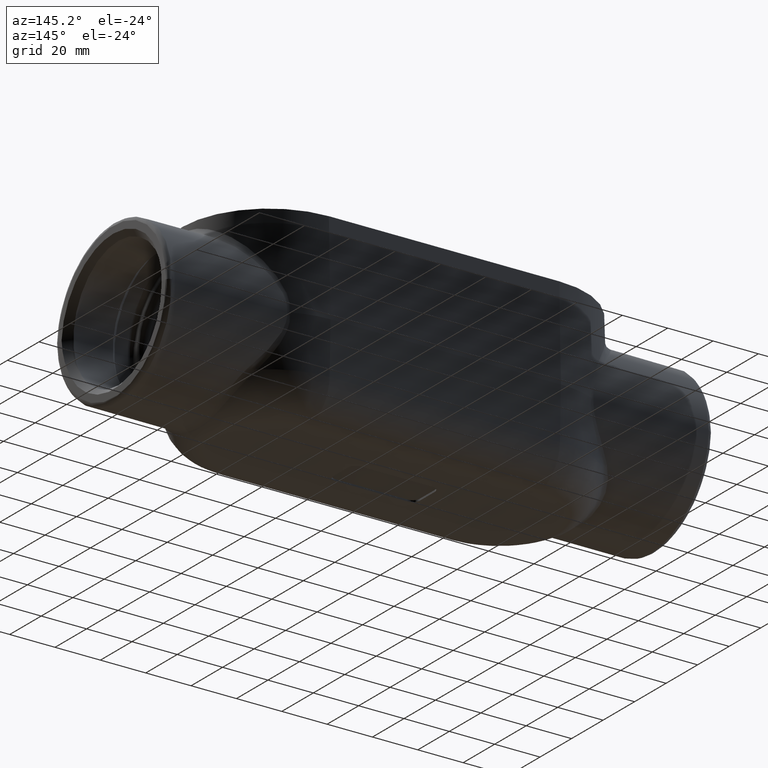
[diagram: clean part render]
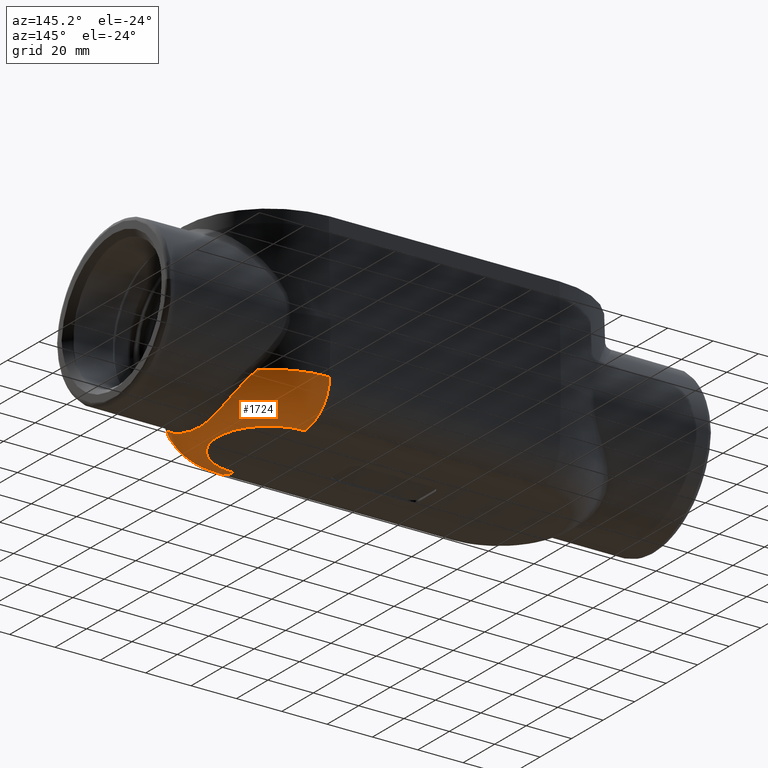
[diagram: same view with one face highlighted and labeled with its STEP entity id]
A machine part, auxiliary view. The second image highlights one B-rep face of the part: STEP entity #1724.
In plain terms, the highlighted toroidal blend (fillet) surface has major radius 22.7184 mm and minor (blend) radius 15.875 mm.
Its self-contained STEP definition (entity closure, byte-faithful):
#141=TOROIDAL_SURFACE('',#1946,0.894425195870098,0.625);
#218=FACE_OUTER_BOUND('',#321,.T.);
#321=EDGE_LOOP('',(#1514,#1515,#1516,#1517,#1518,#1519));
#565=B_SPLINE_CURVE_WITH_KNOTS('',3,(#5524,#5525,#5526,#5527,#5528,#5529,
#5530,#5531,#5532,#5533,#5534,#5535,#5536,#5537,#5538,#5539,#5540,#5541,
#5542,#5543,#5544,#5545,#5546,#5547,#5548,#5549,#5550,#5551,#5552,#5553,
#5554,#5555,#5556,#5557,#5558,#5559,#5560,#5561,#5562,#5563,#5564,#5565,
#5566,#5567,#5568,#5569,#5570,#5571,#5572,#5573,#5574,#5575,#5576,#5577,
#5578,#5579,#5580,#5581,#5582,#5583,#5584,#5585,#5586,#5587,#5588,#5589,
#5590,#5591,#5592,#5593,#5594,#5595,#5596,#5597,#5598,#5599,#5600,#5601,
#5602,#5603,#5604,#5605,#5606,#5607,#5608,#5609,#5610,#5611,#5612,#5613,
#5614,#5615,#5616,#5617,#5618,#5619,#5620,#5621,#5622,#5623,#5624,#5625,
#5626,#5627,#5628,#5629,#5630,#5631,#5632,#5633,#5634,#5635,#5636,#5637,
#5638,#5639,#5640,#5641,#5642,#5643,#5644,#5645,#5646,#5647,#5648,#5649,
#5650,#5651,#5652,#5653,#5654,#5655,#5656,#5657,#5658,#5659,#5660,#5661,
#5662,#5663,#5664,#5665,#5666,#5667,#5668,#5669,#5670,#5671,#5672,#5673,
#5674,#5675,#5676,#5677,#5678,#5679,#5680,#5681,#5682,#5683,#5684,#5685,
#5686,#5687,#5688,#5689,#5690,#5691,#5692,#5693,#5694,#5695,#5696,#5697,
#5698,#5699,#5700,#5701,#5702,#5703,#5704,#5705,#5706,#5707),
 .UNSPECIFIED.,.F.,.F.,(4,3,3,3,3,3,3,3,3,3,3,3,3,3,3,3,3,3,3,3,3,3,3,3,
3,3,3,3,3,3,3,3,3,3,3,3,3,3,3,3,3,3,3,3,3,3,3,3,3,3,3,3,3,3,3,3,3,3,3,3,
3,4),(0.,0.0301255797568227,0.0453351980498015,0.0606446900405566,0.0624999999999997,
0.0759981478171876,0.0912672842113843,0.0937499999999996,0.117493315771868,
0.121463195135862,0.124999999999999,0.15181397581762,0.167157668049751,
0.18258044506544,0.187499999999999,0.198031459482359,0.213423545607691,
0.218749999999999,0.24210025079585,0.2440614968899,0.249999999999999,0.275057596964213,
0.290750429833844,0.306547485021054,0.338369717979346,0.370345337823491,
0.374999999999999,0.402407916028252,0.406249999999999,0.434935570435919,
0.437499999999999,0.467633236195377,0.5,0.500334883276036,0.53125,0.532953437621141,
0.5625,0.565409683387483,0.597914668456354,0.625,0.630225560500624,0.662212401142033,
0.693912375907145,0.725300740378836,0.75,0.75635004087187,0.78125,0.787057882404687,
0.8125,0.817692145284617,0.848316062954014,0.863598536196965,0.875,0.878830092249982,
0.890625,0.90625,0.909056288501204,0.9375,0.93930257922066,0.969657194747261,
0.984844331245081,1.),.UNSPECIFIED.);
#645=CIRCLE('',#1943,1.51921102397982);
#646=CIRCLE('',#1945,1.51921102397982);
#647=CIRCLE('',#1947,0.625);
#648=CIRCLE('',#1948,0.894425195870098);
#649=CIRCLE('',#1949,0.625);
#819=VERTEX_POINT('',#5386);
#820=VERTEX_POINT('',#5445);
#821=VERTEX_POINT('',#5449);
#822=VERTEX_POINT('',#5450);
#823=VERTEX_POINT('',#5708);
#824=VERTEX_POINT('',#5710);
#1062=EDGE_CURVE('',#819,#820,#645,.T.);
#1064=EDGE_CURVE('',#821,#822,#646,.T.);
#1067=EDGE_CURVE('',#819,#822,#565,.T.);
#1068=EDGE_CURVE('',#823,#821,#647,.T.);
#1069=EDGE_CURVE('',#824,#823,#648,.F.);
#1070=EDGE_CURVE('',#820,#824,#649,.T.);
#1514=ORIENTED_EDGE('',*,*,#1062,.F.);
#1515=ORIENTED_EDGE('',*,*,#1067,.T.);
#1516=ORIENTED_EDGE('',*,*,#1064,.F.);
#1517=ORIENTED_EDGE('',*,*,#1068,.F.);
#1518=ORIENTED_EDGE('',*,*,#1069,.F.);
#1519=ORIENTED_EDGE('',*,*,#1070,.F.);
#1724=ADVANCED_FACE('',(#218),#141,.T.);
#1943=AXIS2_PLACEMENT_3D('',#5446,#2395,#2396);
#1945=AXIS2_PLACEMENT_3D('',#5451,#2400,#2401);
#1946=AXIS2_PLACEMENT_3D('',#5523,#2403,#2404);
#1947=AXIS2_PLACEMENT_3D('',#5709,#2405,#2406);
#1948=AXIS2_PLACEMENT_3D('',#5711,#2407,#2408);
#1949=AXIS2_PLACEMENT_3D('',#5712,#2409,#2410);
#2395=DIRECTION('center_axis',(0.,0.,1.));
#2396=DIRECTION('ref_axis',(1.,0.,0.));
#2400=DIRECTION('center_axis',(0.,0.,1.));
#2401=DIRECTION('ref_axis',(1.,0.,0.));
#2403=DIRECTION('center_axis',(0.,0.,1.));
#2404=DIRECTION('ref_axis',(1.,0.,0.));
#2405=DIRECTION('center_axis',(-1.,0.,0.));
#2406=DIRECTION('ref_axis',(0.,0.,1.));
#2407=DIRECTION('center_axis',(0.,0.,1.));
#2408=DIRECTION('ref_axis',(1.,0.,0.));
#2409=DIRECTION('center_axis',(-1.,0.,0.));
#2410=DIRECTION('ref_axis',(0.,0.,1.));
#5386=CARTESIAN_POINT('',(2.99504767558941,1.1479905307475,-0.89136059269242));
#5445=CARTESIAN_POINT('',(2.,1.51921102397982,-0.89136059269242));
#5446=CARTESIAN_POINT('Origin',(2.,0.,-0.89136059269242));
#5449=CARTESIAN_POINT('',(2.,-1.51921102397982,-0.891360592692421));
#5450=CARTESIAN_POINT('',(2.99504767558941,-1.1479905307475,-0.89136059269242));
#5451=CARTESIAN_POINT('Origin',(2.,0.,-0.89136059269242));
#5523=CARTESIAN_POINT('Origin',(2.,0.,-0.875));
#5524=CARTESIAN_POINT('Ctrl Pts',(2.99504767558941,1.1479905307475,-0.891360592692421));
#5525=CARTESIAN_POINT('Ctrl Pts',(3.01057399219219,1.13392040023558,-0.909030704689614));
#5526=CARTESIAN_POINT('Ctrl Pts',(3.025100285192,1.11915316781128,-0.926695436062621));
#5527=CARTESIAN_POINT('Ctrl Pts',(3.03870375130318,1.10365575668228,-0.944284976182077));
#5528=CARTESIAN_POINT('Ctrl Pts',(3.04557178599936,1.09583151861934,-0.953165475522687));
#5529=CARTESIAN_POINT('Ctrl Pts',(3.05220453068985,1.0878212137267,-0.962026903226139));
#5530=CARTESIAN_POINT('Ctrl Pts',(3.05861213967869,1.07961738068275,-0.970863786109923));
#5531=CARTESIAN_POINT('Ctrl Pts',(3.06506182412211,1.07135967730976,-0.97975869623367));
#5532=CARTESIAN_POINT('Ctrl Pts',(3.07128337398407,1.0629059288118,-0.988628698069964));
#5533=CARTESIAN_POINT('Ctrl Pts',(3.07727709312971,1.05425879223979,-0.997456317316376));
#5534=CARTESIAN_POINT('Ctrl Pts',(3.07800345340552,1.05321087251702,-0.998526109175957));
#5535=CARTESIAN_POINT('Ctrl Pts',(3.07872646779714,1.05216011270437,-0.999595279388884));
#5536=CARTESIAN_POINT('Ctrl Pts',(3.07944607672277,1.05110663985484,-1.00066368987531));
#5537=CARTESIAN_POINT('Ctrl Pts',(3.08468152948328,1.04344218887085,-1.00843681835004));
#5538=CARTESIAN_POINT('Ctrl Pts',(3.08975616672911,1.03560611882419,-1.01619836746523));
#5539=CARTESIAN_POINT('Ctrl Pts',(3.0946509320229,1.0276299684371,-1.02390740115665));
#5540=CARTESIAN_POINT('Ctrl Pts',(3.10018790197616,1.01860732845637,-1.03262787810622));
#5541=CARTESIAN_POINT('Ctrl Pts',(3.1054946511167,1.00940563511809,-1.04128105798217));
#5542=CARTESIAN_POINT('Ctrl Pts',(3.11059873419218,0.999985495443546,-1.04989228102264));
#5543=CARTESIAN_POINT('Ctrl Pts',(3.11142864279413,0.998453808981577,-1.05129244006569));
#5544=CARTESIAN_POINT('Ctrl Pts',(3.11225318682427,0.99691633941846,-1.0526914875409));
#5545=CARTESIAN_POINT('Ctrl Pts',(3.11307242027842,0.99537296691034,-1.05408946429179));
#5546=CARTESIAN_POINT('Ctrl Pts',(3.12090711431868,0.980613008890996,-1.06745893799086));
#5547=CARTESIAN_POINT('Ctrl Pts',(3.12825643226101,0.965303736651398,-1.0807354280675));
#5548=CARTESIAN_POINT('Ctrl Pts',(3.13507431356955,0.949562598571795,-1.09377055617332));
#5549=CARTESIAN_POINT('Ctrl Pts',(3.13621426245339,0.946930682295719,-1.09595002792745));
#5550=CARTESIAN_POINT('Ctrl Pts',(3.13733944447825,0.94428676155887,-1.09812278623838));
#5551=CARTESIAN_POINT('Ctrl Pts',(3.13844975015784,0.941631468928156,-1.10028818058322));
#5552=CARTESIAN_POINT('Ctrl Pts',(3.13943893249015,0.939265842411343,-1.1022173518626));
#5553=CARTESIAN_POINT('Ctrl Pts',(3.14041630757976,0.936891190112284,-1.10414067837683));
#5554=CARTESIAN_POINT('Ctrl Pts',(3.1413817982613,0.934507966339376,-1.10605771565007));
#5555=CARTESIAN_POINT('Ctrl Pts',(3.14870158116746,0.916439764369084,-1.12059156556851));
#5556=CARTESIAN_POINT('Ctrl Pts',(3.15530296860501,0.897970987161794,-1.13469096483854));
#5557=CARTESIAN_POINT('Ctrl Pts',(3.16127033309074,0.879059560739982,-1.14837636546733));
#5558=CARTESIAN_POINT('Ctrl Pts',(3.16468502268131,0.8682379239689,-1.15620752697616));
#5559=CARTESIAN_POINT('Ctrl Pts',(3.16789178060131,0.857271092002076,-1.16390308171439));
#5560=CARTESIAN_POINT('Ctrl Pts',(3.1709060595935,0.846131784446723,-1.17147611888655));
#5561=CARTESIAN_POINT('Ctrl Pts',(3.17393587484632,0.834935062436382,-1.17908818916735));
#5562=CARTESIAN_POINT('Ctrl Pts',(3.17677117287375,0.823564278038919,-1.18657636292951));
#5563=CARTESIAN_POINT('Ctrl Pts',(3.1794068927653,0.812076609972724,-1.19389888781503));
#5564=CARTESIAN_POINT('Ctrl Pts',(3.18024763427283,0.808412275458639,-1.19623462562654));
#5565=CARTESIAN_POINT('Ctrl Pts',(3.18106806051869,0.804736025754876,-1.19855351175));
#5566=CARTESIAN_POINT('Ctrl Pts',(3.18186853516852,0.801048329036696,-1.20085532092972));
#5567=CARTESIAN_POINT('Ctrl Pts',(3.18358213862523,0.793153950563977,-1.20578288255567));
#5568=CARTESIAN_POINT('Ctrl Pts',(3.18520836357542,0.78518839363165,-1.21064385898227));
#5569=CARTESIAN_POINT('Ctrl Pts',(3.18674871584953,0.777158714097671,-1.21543283261799));
#5570=CARTESIAN_POINT('Ctrl Pts',(3.18899999307338,0.765423064432701,-1.2224320804218));
#5571=CARTESIAN_POINT('Ctrl Pts',(3.19106782094813,0.753550482612568,-1.22927750343798));
#5572=CARTESIAN_POINT('Ctrl Pts',(3.19296266521096,0.741532193400768,-1.2359707773133));
#5573=CARTESIAN_POINT('Ctrl Pts',(3.19361837889813,0.737373246469274,-1.2382869947345));
#5574=CARTESIAN_POINT('Ctrl Pts',(3.1942533801153,0.733196848908722,-1.24058499273343));
#5575=CARTESIAN_POINT('Ctrl Pts',(3.19486800756494,0.729002872344785,-1.24286464807852));
#5576=CARTESIAN_POINT('Ctrl Pts',(3.19756242753703,0.710617207625442,-1.25285826111177));
#5577=CARTESIAN_POINT('Ctrl Pts',(3.19986840959397,0.691851647787565,-1.26251838199337));
#5578=CARTESIAN_POINT('Ctrl Pts',(3.20179770248726,0.672900411355013,-1.2717389538843));
#5579=CARTESIAN_POINT('Ctrl Pts',(3.20195974863333,0.671308649503901,-1.27251341282969));
#5580=CARTESIAN_POINT('Ctrl Pts',(3.20211915595927,0.669715591875393,-1.27328479017842));
#5581=CARTESIAN_POINT('Ctrl Pts',(3.20227594134085,0.668121361355404,-1.27405303372581));
#5582=CARTESIAN_POINT('Ctrl Pts',(3.20275067548003,0.663294153321748,-1.27637921640595));
#5583=CARTESIAN_POINT('Ctrl Pts',(3.20320136243884,0.658456184210414,-1.27867665700813));
#5584=CARTESIAN_POINT('Ctrl Pts',(3.20362854443036,0.653610927776303,-1.28094395342963));
#5585=CARTESIAN_POINT('Ctrl Pts',(3.2054310448207,0.633166300458063,-1.290510842404));
#5586=CARTESIAN_POINT('Ctrl Pts',(3.20681879548271,0.612559542284387,-1.29955723328397));
#5587=CARTESIAN_POINT('Ctrl Pts',(3.20785338583392,0.591761994355042,-1.30811070236525));
#5588=CARTESIAN_POINT('Ctrl Pts',(3.2085013192129,0.578737104369802,-1.31346748741291));
#5589=CARTESIAN_POINT('Ctrl Pts',(3.20901054600861,0.565637260492309,-1.3186308338477));
#5590=CARTESIAN_POINT('Ctrl Pts',(3.20939511544516,0.552443440469435,-1.32360874685264));
#5591=CARTESIAN_POINT('Ctrl Pts',(3.20978223895963,0.539161995062928,-1.32861972014914));
#5592=CARTESIAN_POINT('Ctrl Pts',(3.21004303604055,0.525785564594791,-1.33344271397641));
#5593=CARTESIAN_POINT('Ctrl Pts',(3.21019153921555,0.512374733657046,-1.33805913604772));
#5594=CARTESIAN_POINT('Ctrl Pts',(3.21049069007462,0.48535940825572,-1.34735864515535));
#5595=CARTESIAN_POINT('Ctrl Pts',(3.21033510130015,0.45820396550763,-1.35582142783575));
#5596=CARTESIAN_POINT('Ctrl Pts',(3.20986085625358,0.430812837625229,-1.36350988996337));
#5597=CARTESIAN_POINT('Ctrl Pts',(3.2093843252904,0.403289681301851,-1.37123541137794));
#5598=CARTESIAN_POINT('Ctrl Pts',(3.20858556394434,0.375528661113709,-1.3781790452599));
#5599=CARTESIAN_POINT('Ctrl Pts',(3.20760595669293,0.347444863903452,-1.38437049030218));
#5600=CARTESIAN_POINT('Ctrl Pts',(3.20746335614779,0.343356730841936,-1.38527177337962));
#5601=CARTESIAN_POINT('Ctrl Pts',(3.2073169116129,0.339261745559334,-1.3861570861543));
#5602=CARTESIAN_POINT('Ctrl Pts',(3.20716710464694,0.335159482077608,-1.38702646532036));
#5603=CARTESIAN_POINT('Ctrl Pts',(3.20628500051401,0.311004239705694,-1.3921456061466));
#5604=CARTESIAN_POINT('Ctrl Pts',(3.20528644396606,0.286612072294681,-1.39670557159987));
#5605=CARTESIAN_POINT('Ctrl Pts',(3.20428169231377,0.262177003599512,-1.40067794763825));
#5606=CARTESIAN_POINT('Ctrl Pts',(3.20414084467636,0.258751657955375,-1.40123480144249));
#5607=CARTESIAN_POINT('Ctrl Pts',(3.20399987179676,0.255325502528553,-1.40178017303558));
#5608=CARTESIAN_POINT('Ctrl Pts',(3.20385910044651,0.25189969882898,-1.40231398869692));
#5609=CARTESIAN_POINT('Ctrl Pts',(3.20280808060609,0.226322138826036,-1.40629953582852));
#5610=CARTESIAN_POINT('Ctrl Pts',(3.20176731262101,0.200718599289013,-1.40965121891877));
#5611=CARTESIAN_POINT('Ctrl Pts',(3.2008487605665,0.175092233971218,-1.41238869736484));
#5612=CARTESIAN_POINT('Ctrl Pts',(3.20076664394797,0.172801290899763,-1.41263342217078));
#5613=CARTESIAN_POINT('Ctrl Pts',(3.20068550322591,0.170510153009019,-1.41287321289444));
#5614=CARTESIAN_POINT('Ctrl Pts',(3.20060539300433,0.168218680594986,-1.41310809629362));
#5615=CARTESIAN_POINT('Ctrl Pts',(3.1996640607633,0.141292817450051,-1.41586808512117));
#5616=CARTESIAN_POINT('Ctrl Pts',(3.19886552542776,0.114343850212648,-1.41794868844677));
#5617=CARTESIAN_POINT('Ctrl Pts',(3.19830623785064,0.0873612520344065,-1.41936968212553));
#5618=CARTESIAN_POINT('Ctrl Pts',(3.19770549491051,0.0583786569886029,-1.42089600231464));
#5619=CARTESIAN_POINT('Ctrl Pts',(3.19738064447339,0.0293572233489921,-1.42166136759737));
#5620=CARTESIAN_POINT('Ctrl Pts',(3.1973783027524,0.00030801848549516,-1.42166662220345));
#5621=CARTESIAN_POINT('Ctrl Pts',(3.19737827852375,7.46038986177555E-6,
-1.42166667657033));
#5622=CARTESIAN_POINT('Ctrl Pts',(3.19737828882755,-0.000293101252362534,
-1.42166664951819));
#5623=CARTESIAN_POINT('Ctrl Pts',(3.19737833371816,-0.000593666451145519,
-1.42166654104298));
#5624=CARTESIAN_POINT('Ctrl Pts',(3.19738247784357,-0.0283406722542494,
-1.42165652703512));
#5625=CARTESIAN_POINT('Ctrl Pts',(3.1976811500237,-0.0561181041509578,-1.42095336759496));
#5626=CARTESIAN_POINT('Ctrl Pts',(3.19823669686896,-0.0839261800019295,
-1.41954677252579));
#5627=CARTESIAN_POINT('Ctrl Pts',(3.19826730776411,-0.0854584181946248,
-1.41946926846912));
#5628=CARTESIAN_POINT('Ctrl Pts',(3.19829869812194,-0.0869909084164126,
-1.41938962071103));
#5629=CARTESIAN_POINT('Ctrl Pts',(3.19833086164592,-0.0885236150816597,
-1.41930782733306));
#5630=CARTESIAN_POINT('Ctrl Pts',(3.19888874621762,-0.115108805247226,-1.41788910021662));
#5631=CARTESIAN_POINT('Ctrl Pts',(3.19968012722116,-0.141758965995899,-1.41582253536236));
#5632=CARTESIAN_POINT('Ctrl Pts',(3.20060962565702,-0.168334126886012,-1.41309631133759));
#5633=CARTESIAN_POINT('Ctrl Pts',(3.20070116071016,-0.170951192897623,-1.41282783852327));
#5634=CARTESIAN_POINT('Ctrl Pts',(3.20079400808019,-0.173566902728021,-1.41255305493893));
#5635=CARTESIAN_POINT('Ctrl Pts',(3.20088807982403,-0.17618140091114,-1.41227194320484));
#5636=CARTESIAN_POINT('Ctrl Pts',(3.20193898475823,-0.205388779545686,-1.40913155591786));
#5637=CARTESIAN_POINT('Ctrl Pts',(3.20314217686373,-0.234445441812,-1.40520487823932));
#5638=CARTESIAN_POINT('Ctrl Pts',(3.20432445435987,-0.263205266803801,-1.40051005848408));
#5639=CARTESIAN_POINT('Ctrl Pts',(3.2053096071877,-0.287169880028194,-1.39659802008938));
#5640=CARTESIAN_POINT('Ctrl Pts',(3.20628090368236,-0.310928237937322,-1.39215185879135));
#5641=CARTESIAN_POINT('Ctrl Pts',(3.20714706900964,-0.334601715450431,-1.38714417467348));
#5642=CARTESIAN_POINT('Ctrl Pts',(3.20731417788605,-0.339169028529305,-1.38617804449029));
#5643=CARTESIAN_POINT('Ctrl Pts',(3.2074772465214,-0.343729841253202,-1.38519164257074));
#5644=CARTESIAN_POINT('Ctrl Pts',(3.20763557745843,-0.348284329154652,-1.38418493640293));
#5645=CARTESIAN_POINT('Ctrl Pts',(3.2086047570232,-0.376163382260917,-1.3780226596943));
#5646=CARTESIAN_POINT('Ctrl Pts',(3.20939707251653,-0.403805518109267,-1.37109987433754));
#5647=CARTESIAN_POINT('Ctrl Pts',(3.20986812702038,-0.431231007522975,-1.36339239415726));
#5648=CARTESIAN_POINT('Ctrl Pts',(3.21033495699125,-0.458410538383234,-1.35575403656026));
#5649=CARTESIAN_POINT('Ctrl Pts',(3.21048625855763,-0.485377339568624,-1.34734498489186));
#5650=CARTESIAN_POINT('Ctrl Pts',(3.21019395893393,-0.512138114934,-1.33814071082391));
#5651=CARTESIAN_POINT('Ctrl Pts',(3.2099045326113,-0.538635832264612,-1.32902691463692));
#5652=CARTESIAN_POINT('Ctrl Pts',(3.20918027417516,-0.564931188846587,-1.31913371560657));
#5653=CARTESIAN_POINT('Ctrl Pts',(3.20788595695185,-0.591100005390588,-1.30838297555196));
#5654=CARTESIAN_POINT('Ctrl Pts',(3.20686746880605,-0.611692043385489,-1.29992330190545));
#5655=CARTESIAN_POINT('Ctrl Pts',(3.20549572572201,-0.632206717567177,-1.29093205326577));
#5656=CARTESIAN_POINT('Ctrl Pts',(3.20372749532939,-0.652465552140547,-1.28147700904157));
#5657=CARTESIAN_POINT('Ctrl Pts',(3.20327289323053,-0.657673984681866,-1.27904617029621));
#5658=CARTESIAN_POINT('Ctrl Pts',(3.20279159554684,-0.662870893639401,-1.27658212948983));
#5659=CARTESIAN_POINT('Ctrl Pts',(3.20228297406619,-0.668050166637367,-1.27408730564667));
#5660=CARTESIAN_POINT('Ctrl Pts',(3.20028855318996,-0.688359277801368,-1.26430453212125));
#5661=CARTESIAN_POINT('Ctrl Pts',(3.197871960538,-0.708395054786666,-1.25404638905152));
#5662=CARTESIAN_POINT('Ctrl Pts',(3.19501396553986,-0.728007602615691,-1.24340561015026));
#5663=CARTESIAN_POINT('Ctrl Pts',(3.19434734200136,-0.73258220335544,-1.24092366260027));
#5664=CARTESIAN_POINT('Ctrl Pts',(3.19365642995557,-0.737136750515935,-1.23841944540463));
#5665=CARTESIAN_POINT('Ctrl Pts',(3.19294079719155,-0.741671331979966,-1.23589318416428));
#5666=CARTESIAN_POINT('Ctrl Pts',(3.18980588300618,-0.761535603811695,-1.22482659722695));
#5667=CARTESIAN_POINT('Ctrl Pts',(3.18619648812802,-0.781016623885873,-1.21333687135953));
#5668=CARTESIAN_POINT('Ctrl Pts',(3.18207086026777,-0.800113396680529,-1.20143817541751));
#5669=CARTESIAN_POINT('Ctrl Pts',(3.181228915443,-0.804010604467802,-1.1990099279339));
#5670=CARTESIAN_POINT('Ctrl Pts',(3.18036576508654,-0.807890469788008,-1.19656549465189));
#5671=CARTESIAN_POINT('Ctrl Pts',(3.17948102272059,-0.811753372432038,-1.19410481117201));
#5672=CARTESIAN_POINT('Ctrl Pts',(3.17426270237544,-0.834537251936751,-1.1795913944305));
#5673=CARTESIAN_POINT('Ctrl Pts',(3.16829456302228,-0.856731964052606,-1.16451360716471));
#5674=CARTESIAN_POINT('Ctrl Pts',(3.16147536580423,-0.878408868467853,-1.14884689936224));
#5675=CARTESIAN_POINT('Ctrl Pts',(3.1580723329151,-0.889226449526303,-1.14102862981943));
#5676=CARTESIAN_POINT('Ctrl Pts',(3.15445710362823,-0.899914904329675,-1.13306351368072));
#5677=CARTESIAN_POINT('Ctrl Pts',(3.15061324918608,-0.910477119547506,-1.12494907549926));
#5678=CARTESIAN_POINT('Ctrl Pts',(3.14774554795804,-0.918357042683737,-1.11889531235914));
#5679=CARTESIAN_POINT('Ctrl Pts',(3.14475055130107,-0.92616673109678,-1.11275838504449));
#5680=CARTESIAN_POINT('Ctrl Pts',(3.1416373252907,-0.933874485893262,-1.10656637125465));
#5681=CARTESIAN_POINT('Ctrl Pts',(3.14059149968262,-0.936463750957886,-1.10448628886892));
#5682=CARTESIAN_POINT('Ctrl Pts',(3.13953053225535,-0.939045939329089,-1.10239642446958));
#5683=CARTESIAN_POINT('Ctrl Pts',(3.13845536144216,-0.941618002980846,-1.10029920036491));
#5684=CARTESIAN_POINT('Ctrl Pts',(3.13514433399702,-0.949538766116459,-1.09384072280585));
#5685=CARTESIAN_POINT('Ctrl Pts',(3.13169820180665,-0.95736300853947,-1.08731233477473));
#5686=CARTESIAN_POINT('Ctrl Pts',(3.12813259606392,-0.965049282198726,-1.08075324154812));
#5687=CARTESIAN_POINT('Ctrl Pts',(3.12340915176821,-0.975231475096817,-1.07206425187241));
#5688=CARTESIAN_POINT('Ctrl Pts',(3.11846832484094,-0.985190564763296,-1.06330605714211));
#5689=CARTESIAN_POINT('Ctrl Pts',(3.11330612315169,-0.994933117010932,-1.05448820148402));
#5690=CARTESIAN_POINT('Ctrl Pts',(3.11237897900824,-0.996682903401006,-1.05290449287995));
#5691=CARTESIAN_POINT('Ctrl Pts',(3.11144471399743,-0.998425677498993,-1.05131888791036));
#5692=CARTESIAN_POINT('Ctrl Pts',(3.11050329006309,-1.00016151857882,-1.04973140948732));
#5693=CARTESIAN_POINT('Ctrl Pts',(3.10096129508463,-1.01775549113768,-1.03364119700341));
#5694=CARTESIAN_POINT('Ctrl Pts',(3.09068370310896,-1.03463714524189,-1.0173585377775));
#5695=CARTESIAN_POINT('Ctrl Pts',(3.0796318689126,-1.05083485874548,-1.00093946183814));
#5696=CARTESIAN_POINT('Ctrl Pts',(3.07893147484928,-1.0518613654932,-0.999898926565101));
#5697=CARTESIAN_POINT('Ctrl Pts',(3.07822808601412,-1.05288495832522,-0.998858013253805));
#5698=CARTESIAN_POINT('Ctrl Pts',(3.07752168587077,-1.05390566149813,-0.997816722028788));
#5699=CARTESIAN_POINT('Ctrl Pts',(3.06562622823223,-1.07109383942975,-0.980281850648748));
#5700=CARTESIAN_POINT('Ctrl Pts',(3.05287901588864,-1.08746452066203,-0.962640305652019));
#5701=CARTESIAN_POINT('Ctrl Pts',(3.03917345480655,-1.10311996580368,-0.944892706189924));
#5702=CARTESIAN_POINT('Ctrl Pts',(3.03231623644546,-1.11095275756122,-0.936013159838784));
#5703=CARTESIAN_POINT('Ctrl Pts',(3.02521872347743,-1.1186061407498,-0.92710698100261));
#5704=CARTESIAN_POINT('Ctrl Pts',(3.01785159055466,-1.12609889008189,-0.918162798386082));
#5705=CARTESIAN_POINT('Ctrl Pts',(3.01049972232941,-1.1335761144393,-0.909237148113626));
#5706=CARTESIAN_POINT('Ctrl Pts',(3.00287923061899,-1.14089348357292,-0.900273489294057));
#5707=CARTESIAN_POINT('Ctrl Pts',(2.99504767558941,-1.1479905307475,-0.891360592692421));
#5708=CARTESIAN_POINT('',(2.,-0.894425195870098,-1.5));
#5709=CARTESIAN_POINT('Origin',(2.,-0.894425195870098,-0.875));
#5710=CARTESIAN_POINT('',(2.,0.894425195870098,-1.5));
#5711=CARTESIAN_POINT('Origin',(2.,0.,-1.5));
#5712=CARTESIAN_POINT('Origin',(2.,0.894425195870098,-0.875));